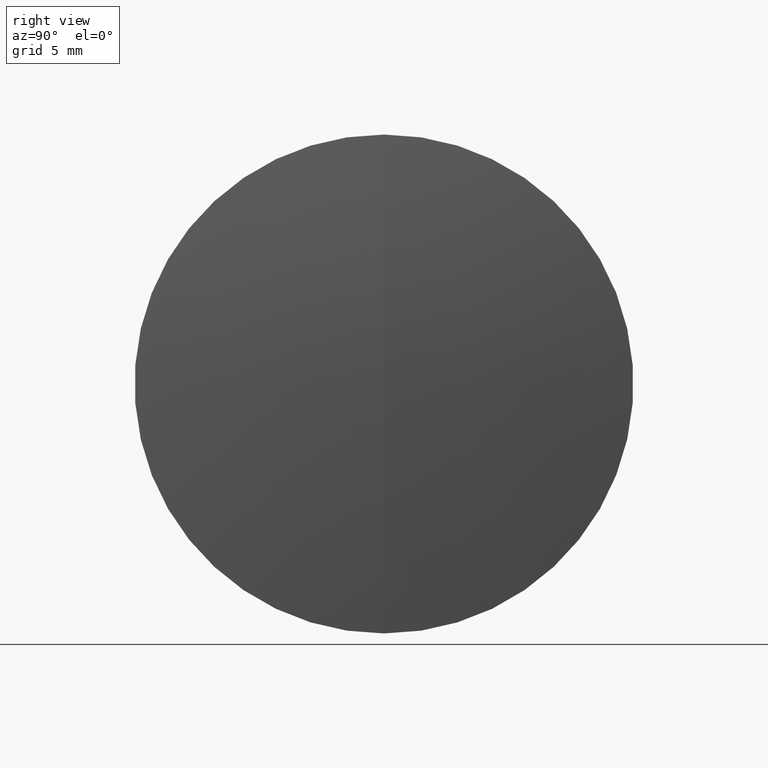
[diagram: clean part render]
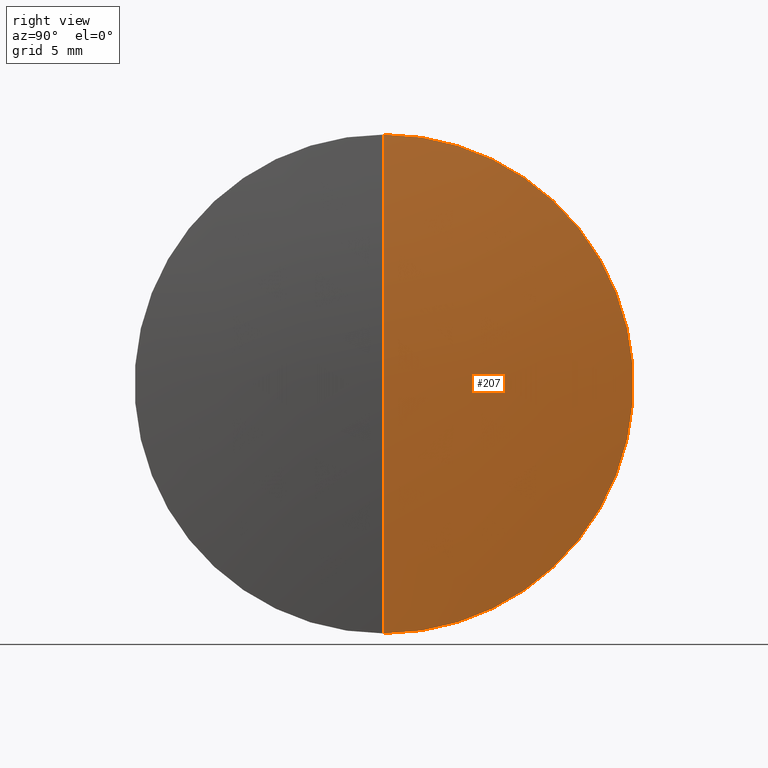
[diagram: same view with one face highlighted and labeled with its STEP entity id]
A machine part, right view. The second image highlights one B-rep face of the part: STEP entity #207.
In plain terms, the highlighted spherical surface has radius 101.2 mm.
Its self-contained STEP definition (entity closure, byte-faithful):
#5 = CARTESIAN_POINT ( 'NONE',  ( 249.5958458084194300, 0.0000000000000000000, 6.196712803685607000E-015 ) ) ;
#15 = CIRCLE ( 'NONE', #239, 12.69999999999999900 ) ;
#41 = EDGE_CURVE ( 'NONE', #332, #109, #335, .T. ) ;
#42 = DIRECTION ( 'NONE',  ( 0.0000000000000000000, 1.000000000000000000, 0.0000000000000000000 ) ) ;
#46 = EDGE_CURVE ( 'NONE', #332, #55, #80, .T. ) ;
#55 = VERTEX_POINT ( 'NONE', #79 ) ;
#72 = DIRECTION ( 'NONE',  ( 0.0000000000000000000, 0.0000000000000000000, 1.000000000000000000 ) ) ;
#79 = CARTESIAN_POINT ( 'NONE',  ( 248.7957960076102500, 0.0000000000000000000, 12.69999999999999900 ) ) ;
#80 = CIRCLE ( 'NONE', #252, 101.2000000000000000 ) ;
#89 = FACE_OUTER_BOUND ( 'NONE', #148, .T. ) ;
#90 = ORIENTED_EDGE ( 'NONE', *, *, #41, .T. ) ;
#106 = CARTESIAN_POINT ( 'NONE',  ( 148.3958458084194100, 0.0000000000000000000, 0.0000000000000000000 ) ) ;
#109 = VERTEX_POINT ( 'NONE', #305 ) ;
#123 = DIRECTION ( 'NONE',  ( 0.0000000000000000000, 0.0000000000000000000, 1.000000000000000000 ) ) ;
#126 = DIRECTION ( 'NONE',  ( -0.0000000000000000000, 1.000000000000000000, 1.224646799147353200E-016 ) ) ;
#136 = CARTESIAN_POINT ( 'NONE',  ( 148.3958458084194100, 0.0000000000000000000, 0.0000000000000000000 ) ) ;
#139 = AXIS2_PLACEMENT_3D ( 'NONE', #106, #42, #123 ) ;
#142 = DIRECTION ( 'NONE',  ( 0.0000000000000000000, -1.224646799147353200E-016, 1.000000000000000000 ) ) ;
#148 = EDGE_LOOP ( 'NONE', ( #293, #90, #170 ) ) ;
#154 = DIRECTION ( 'NONE',  ( 0.0000000000000000000, 0.0000000000000000000, -1.000000000000000000 ) ) ;
#161 = DIRECTION ( 'NONE',  ( 0.0000000000000000000, -1.000000000000000000, 0.0000000000000000000 ) ) ;
#163 = CARTESIAN_POINT ( 'NONE',  ( 148.3958458084194100, 0.0000000000000000000, 0.0000000000000000000 ) ) ;
#170 = ORIENTED_EDGE ( 'NONE', *, *, #287, .F. ) ;
#207 = ADVANCED_FACE ( 'NONE', ( #89 ), #292, .T. ) ;
#239 = AXIS2_PLACEMENT_3D ( 'NONE', #300, #267, #72 ) ;
#252 = AXIS2_PLACEMENT_3D ( 'NONE', #163, #161, #154 ) ;
#262 = AXIS2_PLACEMENT_3D ( 'NONE', #136, #126, #142 ) ;
#267 = DIRECTION ( 'NONE',  ( -1.000000000000000000, -0.0000000000000000000, -0.0000000000000000000 ) ) ;
#287 = EDGE_CURVE ( 'NONE', #55, #109, #15, .T. ) ;
#292 = SPHERICAL_SURFACE ( 'NONE', #139, 101.2000000000000000 ) ;
#293 = ORIENTED_EDGE ( 'NONE', *, *, #46, .F. ) ;
#300 = CARTESIAN_POINT ( 'NONE',  ( 248.7957960076102500, 0.0000000000000000000, 0.0000000000000000000 ) ) ;
#305 = CARTESIAN_POINT ( 'NONE',  ( 248.7957960076102500, 1.555301434917138400E-015, -12.69999999999999900 ) ) ;
#332 = VERTEX_POINT ( 'NONE', #5 ) ;
#335 = CIRCLE ( 'NONE', #262, 101.2000000000000000 ) ;